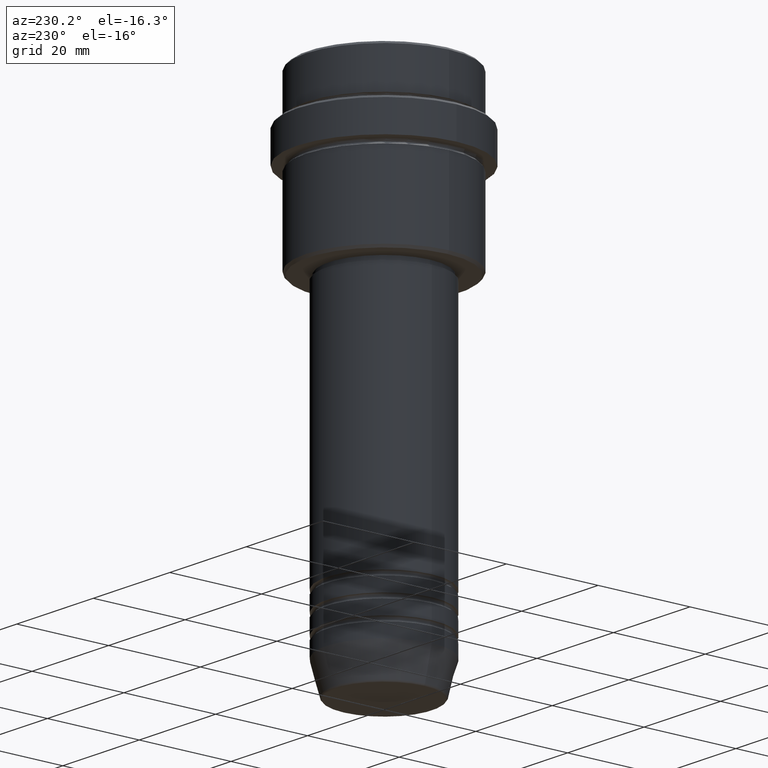
[diagram: clean part render]
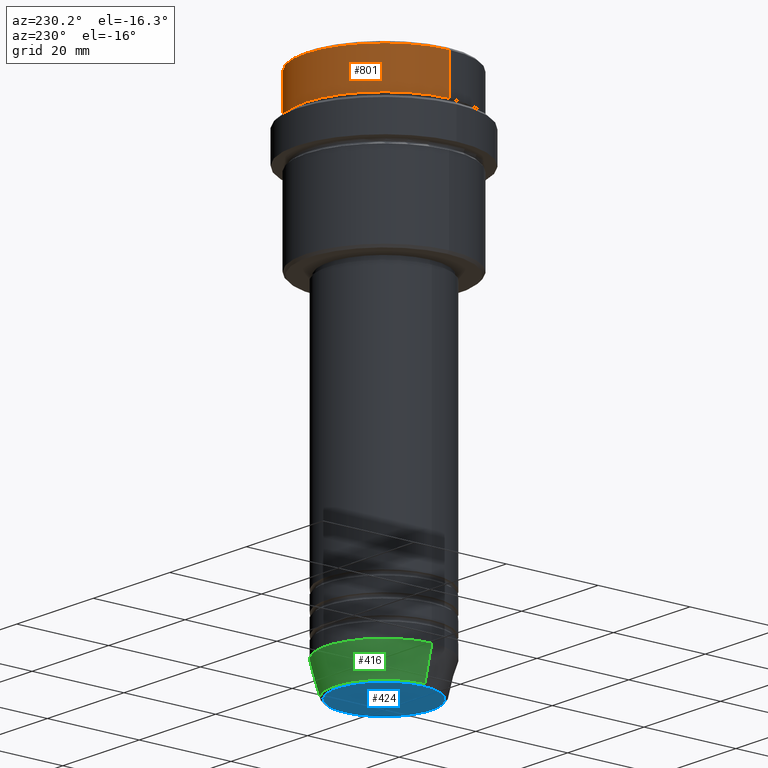
[diagram: same view with three faces highlighted in distinct colors, each labeled with its STEP entity id]
A machine part, auxiliary view with three faces highlighted in distinct colors.
Their STEP definitions:

[orange] entity #801 — the highlighted cylindrical surface (partial cylindrical patch) has radius 17 mm, axis along (-0, -0, 1).
#50 = EDGE_LOOP ( 'NONE', ( #959, #784, #355, #840 ) ) ;
#97 = LINE ( 'NONE', #1067, #422 ) ;
#109 = VERTEX_POINT ( 'NONE', #1014 ) ;
#127 = DIRECTION ( 'NONE',  ( -0.000000000000000000, -0.000000000000000000, 1.000000000000000000 ) ) ;
#131 = VERTEX_POINT ( 'NONE', #800 ) ;
#132 = FACE_OUTER_BOUND ( 'NONE', #50, .T. ) ;
#195 = CARTESIAN_POINT ( 'NONE',  ( 16.99999999999999645, 0.000000000000000000, -0.4999999999999657496 ) ) ;
#232 = DIRECTION ( 'NONE',  ( -0.000000000000000000, -0.000000000000000000, 1.000000000000000000 ) ) ;
#340 = EDGE_CURVE ( 'NONE', #109, #131, #97, .T. ) ;
#355 = ORIENTED_EDGE ( 'NONE', *, *, #676, .T. ) ;
#422 = VECTOR ( 'NONE', #1313, 1000.000000000000000 ) ;
#448 = AXIS2_PLACEMENT_3D ( 'NONE', #935, #127, #665 ) ;
#566 = CYLINDRICAL_SURFACE ( 'NONE', #942, 16.99999999999999645 ) ;
#657 = AXIS2_PLACEMENT_3D ( 'NONE', #865, #1089, #1099 ) ;
#665 = DIRECTION ( 'NONE',  ( 1.000000000000000000, 0.000000000000000000, 0.000000000000000000 ) ) ;
#676 = EDGE_CURVE ( 'NONE', #131, #1208, #896, .T. ) ;
#694 = CARTESIAN_POINT ( 'NONE',  ( 16.99999999999999289, 0.000000000000000000, -8.999999999999998224 ) ) ;
#695 = DIRECTION ( 'NONE',  ( -0.000000000000000000, -0.000000000000000000, 1.000000000000000000 ) ) ;
#784 = ORIENTED_EDGE ( 'NONE', *, *, #340, .T. ) ;
#800 = CARTESIAN_POINT ( 'NONE',  ( -16.99999999999999645, 2.081899558550499885E-15, -0.4999999999999657496 ) ) ;
#801 = ADVANCED_FACE ( 'NONE', ( #132 ), #566, .T. ) ;
#840 = ORIENTED_EDGE ( 'NONE', *, *, #1031, .F. ) ;
#865 = CARTESIAN_POINT ( 'NONE',  ( 0.000000000000000000, 0.000000000000000000, -0.4999999999999657496 ) ) ;
#885 = LINE ( 'NONE', #1117, #1265 ) ;
#896 = CIRCLE ( 'NONE', #657, 16.99999999999999645 ) ;
#935 = CARTESIAN_POINT ( 'NONE',  ( 0.000000000000000000, 0.000000000000000000, -8.999999999999998224 ) ) ;
#942 = AXIS2_PLACEMENT_3D ( 'NONE', #1347, #695, #1351 ) ;
#959 = ORIENTED_EDGE ( 'NONE', *, *, #1391, .T. ) ;
#972 = VERTEX_POINT ( 'NONE', #694 ) ;
#1014 = CARTESIAN_POINT ( 'NONE',  ( -16.99999999999999289, 2.081899558550499885E-15, -8.999999999999998224 ) ) ;
#1031 = EDGE_CURVE ( 'NONE', #972, #1208, #885, .T. ) ;
#1067 = CARTESIAN_POINT ( 'NONE',  ( -16.99999999999999645, 2.081899558550499885E-15, 0.000000000000000000 ) ) ;
#1089 = DIRECTION ( 'NONE',  ( 0.000000000000000000, 0.000000000000000000, -1.000000000000000000 ) ) ;
#1099 = DIRECTION ( 'NONE',  ( 1.000000000000000000, 0.000000000000000000, 0.000000000000000000 ) ) ;
#1117 = CARTESIAN_POINT ( 'NONE',  ( 16.99999999999999645, 0.000000000000000000, 0.000000000000000000 ) ) ;
#1208 = VERTEX_POINT ( 'NONE', #195 ) ;
#1265 = VECTOR ( 'NONE', #232, 1000.000000000000000 ) ;
#1270 = CIRCLE ( 'NONE', #448, 16.99999999999999289 ) ;
#1313 = DIRECTION ( 'NONE',  ( -0.000000000000000000, -0.000000000000000000, 1.000000000000000000 ) ) ;
#1347 = CARTESIAN_POINT ( 'NONE',  ( 0.000000000000000000, 0.000000000000000000, 0.000000000000000000 ) ) ;
#1351 = DIRECTION ( 'NONE',  ( 1.000000000000000000, 0.000000000000000000, 0.000000000000000000 ) ) ;
#1391 = EDGE_CURVE ( 'NONE', #972, #109, #1270, .T. ) ;

[blue] entity #424 — the highlighted planar face has unit normal (0, -0, 1).
#77 = ORIENTED_EDGE ( 'NONE', *, *, #847, .T. ) ;
#100 = DIRECTION ( 'NONE',  ( 0.000000000000000000, 0.000000000000000000, -1.000000000000000000 ) ) ;
#122 = DIRECTION ( 'NONE',  ( 1.000000000000000000, 0.000000000000000000, 0.000000000000000000 ) ) ;
#171 = AXIS2_PLACEMENT_3D ( 'NONE', #881, #538, #1305 ) ;
#249 = AXIS2_PLACEMENT_3D ( 'NONE', #575, #667, #1137 ) ;
#333 = CARTESIAN_POINT ( 'NONE',  ( -10.24069215899265473, 1.283696036640841981E-15, -110.0000000000000142 ) ) ;
#424 = ADVANCED_FACE ( 'NONE', ( #548 ), #1417, .F. ) ;
#434 = CARTESIAN_POINT ( 'NONE',  ( 0.000000000000000000, 0.000000000000000000, -110.0000000000000142 ) ) ;
#476 = CIRCLE ( 'NONE', #685, 10.24069215899265473 ) ;
#538 = DIRECTION ( 'NONE',  ( 0.000000000000000000, -0.000000000000000000, 1.000000000000000000 ) ) ;
#539 = EDGE_LOOP ( 'NONE', ( #1259, #77 ) ) ;
#548 = FACE_OUTER_BOUND ( 'NONE', #539, .T. ) ;
#575 = CARTESIAN_POINT ( 'NONE',  ( 0.000000000000000000, 0.000000000000000000, -110.0000000000000142 ) ) ;
#667 = DIRECTION ( 'NONE',  ( 0.000000000000000000, 0.000000000000000000, -1.000000000000000000 ) ) ;
#685 = AXIS2_PLACEMENT_3D ( 'NONE', #434, #100, #122 ) ;
#718 = CARTESIAN_POINT ( 'NONE',  ( 10.24069215899265473, 0.000000000000000000, -110.0000000000000142 ) ) ;
#847 = EDGE_CURVE ( 'NONE', #1369, #952, #871, .T. ) ;
#871 = CIRCLE ( 'NONE', #249, 10.24069215899265473 ) ;
#881 = CARTESIAN_POINT ( 'NONE',  ( 0.000000000000000000, 0.000000000000000000, -110.0000000000000142 ) ) ;
#952 = VERTEX_POINT ( 'NONE', #718 ) ;
#1137 = DIRECTION ( 'NONE',  ( 1.000000000000000000, 0.000000000000000000, 0.000000000000000000 ) ) ;
#1259 = ORIENTED_EDGE ( 'NONE', *, *, #1349, .T. ) ;
#1305 = DIRECTION ( 'NONE',  ( 1.000000000000000000, 0.000000000000000000, 0.000000000000000000 ) ) ;
#1349 = EDGE_CURVE ( 'NONE', #952, #1369, #476, .T. ) ;
#1369 = VERTEX_POINT ( 'NONE', #333 ) ;
#1417 = PLANE ( 'NONE',  #171 ) ;

[green] entity #416 — the highlighted conical surface has half-angle 15 deg.
#59 = ORIENTED_EDGE ( 'NONE', *, *, #1086, .F. ) ;
#190 = ORIENTED_EDGE ( 'NONE', *, *, #427, .T. ) ;
#199 = CIRCLE ( 'NONE', #607, 12.50000000000000000 ) ;
#209 = CARTESIAN_POINT ( 'NONE',  ( -12.50000000000000000, 1.530808498934191521E-15, -103.0000000000000142 ) ) ;
#225 = DIRECTION ( 'NONE',  ( -0.000000000000000000, -0.000000000000000000, 1.000000000000000000 ) ) ;
#251 = EDGE_CURVE ( 'NONE', #574, #637, #1373, .T. ) ;
#261 = CARTESIAN_POINT ( 'NONE',  ( 0.000000000000000000, 0.000000000000000000, -109.6294095225512706 ) ) ;
#282 = CARTESIAN_POINT ( 'NONE',  ( 12.50000000000000000, 0.000000000000000000, -103.0000000000000142 ) ) ;
#285 = DIRECTION ( 'NONE',  ( -0.000000000000000000, -0.000000000000000000, 1.000000000000000000 ) ) ;
#416 = ADVANCED_FACE ( 'NONE', ( #1401 ), #894, .T. ) ;
#417 = ORIENTED_EDGE ( 'NONE', *, *, #647, .T. ) ;
#426 = DIRECTION ( 'NONE',  ( 1.000000000000000000, 0.000000000000000000, 0.000000000000000000 ) ) ;
#427 = EDGE_CURVE ( 'NONE', #1204, #711, #766, .T. ) ;
#467 = VECTOR ( 'NONE', #1060, 1000.000000000000000 ) ;
#574 = VERTEX_POINT ( 'NONE', #701 ) ;
#591 = DIRECTION ( 'NONE',  ( 1.000000000000000000, 0.000000000000000000, 0.000000000000000000 ) ) ;
#607 = AXIS2_PLACEMENT_3D ( 'NONE', #1375, #285, #591 ) ;
#637 = VERTEX_POINT ( 'NONE', #926 ) ;
#644 = CARTESIAN_POINT ( 'NONE',  ( 0.000000000000000000, 0.000000000000000000, -103.0000000000000142 ) ) ;
#647 = EDGE_CURVE ( 'NONE', #574, #1204, #1409, .T. ) ;
#701 = CARTESIAN_POINT ( 'NONE',  ( 10.72365507213718416, 0.000000000000000000, -109.6294095225512706 ) ) ;
#711 = VERTEX_POINT ( 'NONE', #209 ) ;
#766 = LINE ( 'NONE', #1200, #844 ) ;
#844 = VECTOR ( 'NONE', #1131, 1000.000000000000000 ) ;
#894 = CONICAL_SURFACE ( 'NONE', #1383, 12.50000000000000000, 0.2617993877991500740 ) ;
#926 = CARTESIAN_POINT ( 'NONE',  ( 12.50000000000000000, 0.000000000000000000, -103.0000000000000142 ) ) ;
#1060 = DIRECTION ( 'NONE',  ( 0.2588190451025213501, 0.000000000000000000, 0.9659258262890680902 ) ) ;
#1084 = DIRECTION ( 'NONE',  ( 1.000000000000000000, 0.000000000000000000, 0.000000000000000000 ) ) ;
#1086 = EDGE_CURVE ( 'NONE', #637, #711, #199, .T. ) ;
#1108 = EDGE_LOOP ( 'NONE', ( #417, #190, #59, #1128 ) ) ;
#1128 = ORIENTED_EDGE ( 'NONE', *, *, #251, .F. ) ;
#1131 = DIRECTION ( 'NONE',  ( -0.2588190451025213501, 3.169619151431772337E-17, 0.9659258262890680902 ) ) ;
#1200 = CARTESIAN_POINT ( 'NONE',  ( -12.50000000000000000, 1.530808498934191521E-15, -103.0000000000000142 ) ) ;
#1204 = VERTEX_POINT ( 'NONE', #1368 ) ;
#1368 = CARTESIAN_POINT ( 'NONE',  ( -10.72365507213718416, 1.422038742429749727E-15, -109.6294095225512706 ) ) ;
#1373 = LINE ( 'NONE', #282, #467 ) ;
#1375 = CARTESIAN_POINT ( 'NONE',  ( 0.000000000000000000, 0.000000000000000000, -103.0000000000000142 ) ) ;
#1383 = AXIS2_PLACEMENT_3D ( 'NONE', #644, #1408, #1084 ) ;
#1385 = AXIS2_PLACEMENT_3D ( 'NONE', #261, #225, #426 ) ;
#1401 = FACE_OUTER_BOUND ( 'NONE', #1108, .T. ) ;
#1408 = DIRECTION ( 'NONE',  ( -0.000000000000000000, -0.000000000000000000, 1.000000000000000000 ) ) ;
#1409 = CIRCLE ( 'NONE', #1385, 10.72365507213718416 ) ;